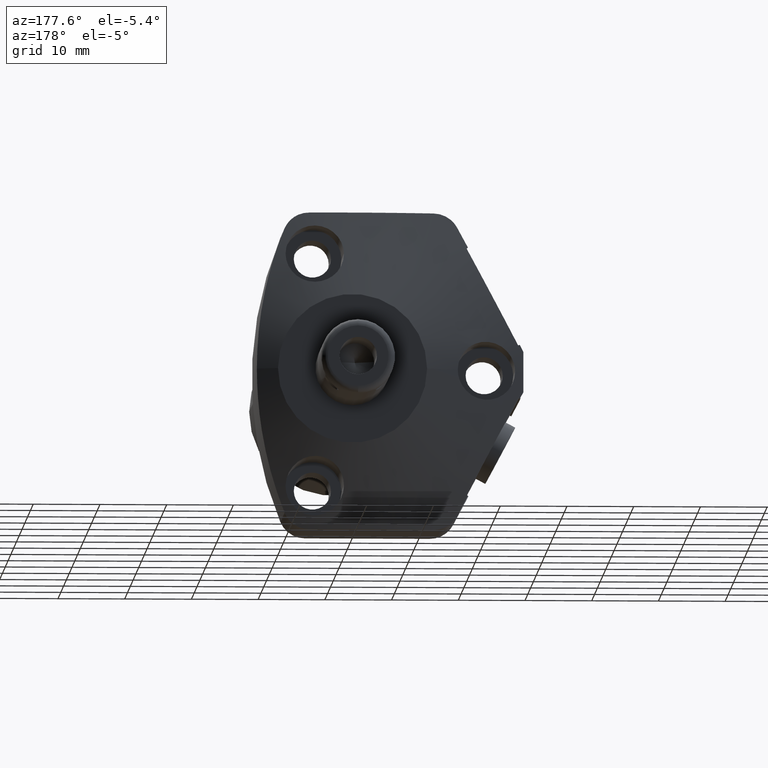
[diagram: clean part render]
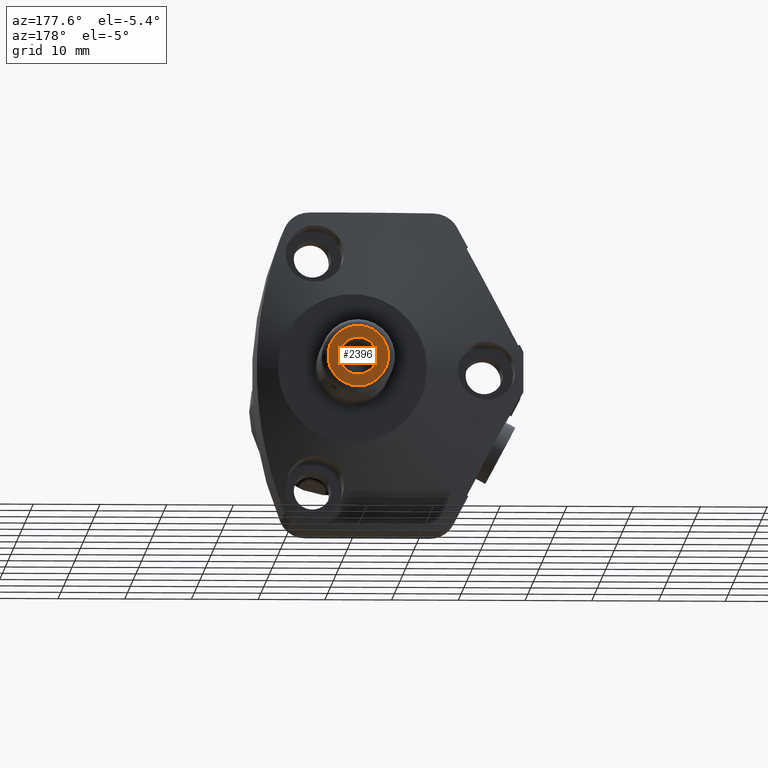
[diagram: same view with one face highlighted and labeled with its STEP entity id]
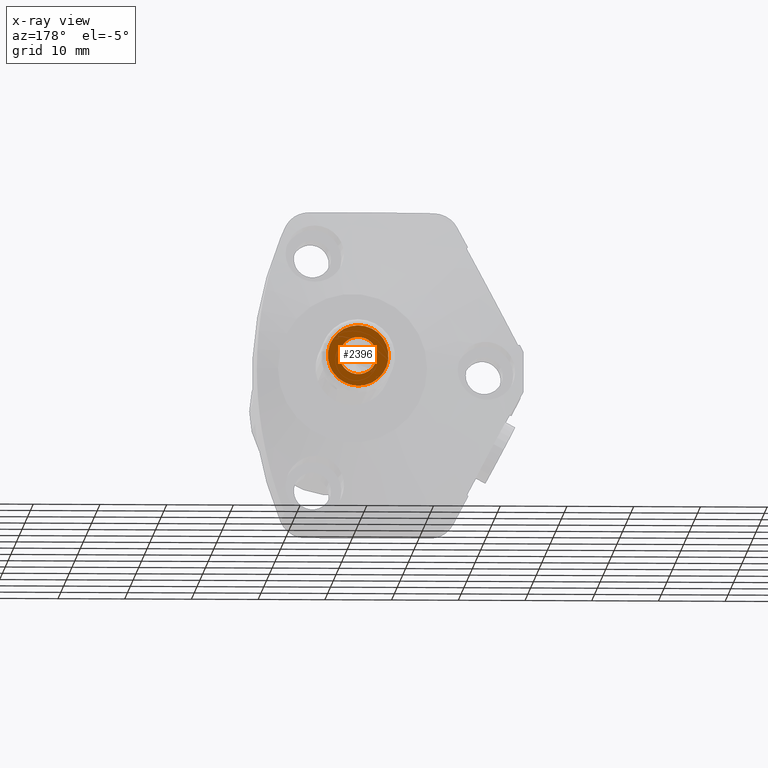
[diagram: x-ray of the same camera — body ghosted, the highlighted face saturated]
A machine part, auxiliary view. The second image highlights one B-rep face of the part: STEP entity #2396.
The next image is the same camera in x-ray: the body ghosted, the highlighted face saturated — about 0% of this face is hidden behind the body in this view.
In plain terms, the highlighted planar face has unit normal (0, 1, 0).
Its self-contained STEP definition (entity closure, byte-faithful):
#32=CARTESIAN_POINT('',(0.E0,1.548E0,0.E0));
#33=DIRECTION('',(0.E0,1.E0,0.E0));
#34=DIRECTION('',(1.E0,0.E0,0.E0));
#35=AXIS2_PLACEMENT_3D('',#32,#33,#34);
#40=CARTESIAN_POINT('',(0.E0,1.548E0,0.E0));
#41=DIRECTION('',(0.E0,1.E0,0.E0));
#42=DIRECTION('',(-1.E0,0.E0,0.E0));
#43=AXIS2_PLACEMENT_3D('',#40,#41,#42);
#64=CARTESIAN_POINT('',(0.E0,1.548E0,0.E0));
#65=DIRECTION('',(0.E0,-1.E0,0.E0));
#66=DIRECTION('',(0.E0,0.E0,1.E0));
#67=AXIS2_PLACEMENT_3D('',#64,#65,#66);
#72=CARTESIAN_POINT('',(0.E0,1.548E0,0.E0));
#73=DIRECTION('',(0.E0,1.E0,0.E0));
#74=DIRECTION('',(0.E0,0.E0,1.E0));
#75=AXIS2_PLACEMENT_3D('',#72,#73,#74);
#2214=CARTESIAN_POINT('',(1.105E-1,1.548E0,0.E0));
#2215=CARTESIAN_POINT('',(-1.105E-1,1.548E0,0.E0));
#2216=VERTEX_POINT('',#2214);
#2217=VERTEX_POINT('',#2215);
#2276=CARTESIAN_POINT('',(0.E0,1.548E0,1.7875E-1));
#2277=VERTEX_POINT('',#2276);
#2278=CARTESIAN_POINT('',(0.E0,1.548E0,-1.7875E-1));
#2279=VERTEX_POINT('',#2278);
#2380=CARTESIAN_POINT('',(0.E0,1.548E0,0.E0));
#2381=DIRECTION('',(0.E0,1.E0,0.E0));
#2382=DIRECTION('',(0.E0,0.E0,-1.E0));
#2383=AXIS2_PLACEMENT_3D('',#2380,#2381,#2382);
#2384=PLANE('',#2383);
#2386=ORIENTED_EDGE('',*,*,#2385,.T.);
#2388=ORIENTED_EDGE('',*,*,#2387,.F.);
#2389=EDGE_LOOP('',(#2386,#2388));
#2390=FACE_OUTER_BOUND('',#2389,.F.);
#2391=ORIENTED_EDGE('',*,*,#2357,.T.);
#2393=ORIENTED_EDGE('',*,*,#2392,.T.);
#2394=EDGE_LOOP('',(#2391,#2393));
#2395=FACE_BOUND('',#2394,.F.);
#36=CIRCLE('',#35,1.105E-1);
#44=CIRCLE('',#43,1.105E-1);
#68=CIRCLE('',#67,1.7875E-1);
#76=CIRCLE('',#75,1.7875E-1);
#2357=EDGE_CURVE('',#2216,#2217,#36,.T.);
#2385=EDGE_CURVE('',#2277,#2279,#68,.T.);
#2387=EDGE_CURVE('',#2277,#2279,#76,.T.);
#2392=EDGE_CURVE('',#2217,#2216,#44,.T.);
#2396=ADVANCED_FACE('',(#2390,#2395),#2384,.T.);